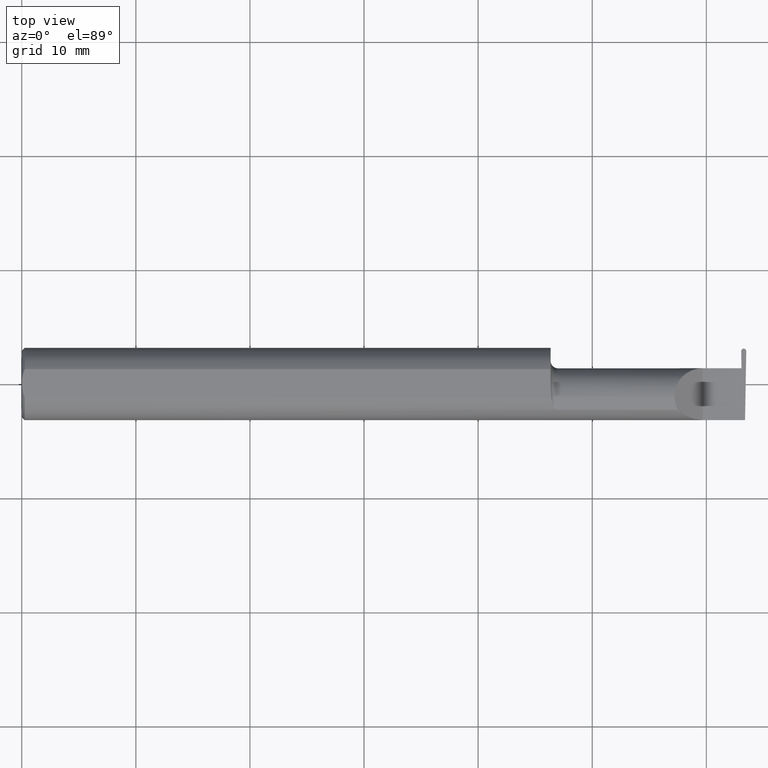
[diagram: clean part render]
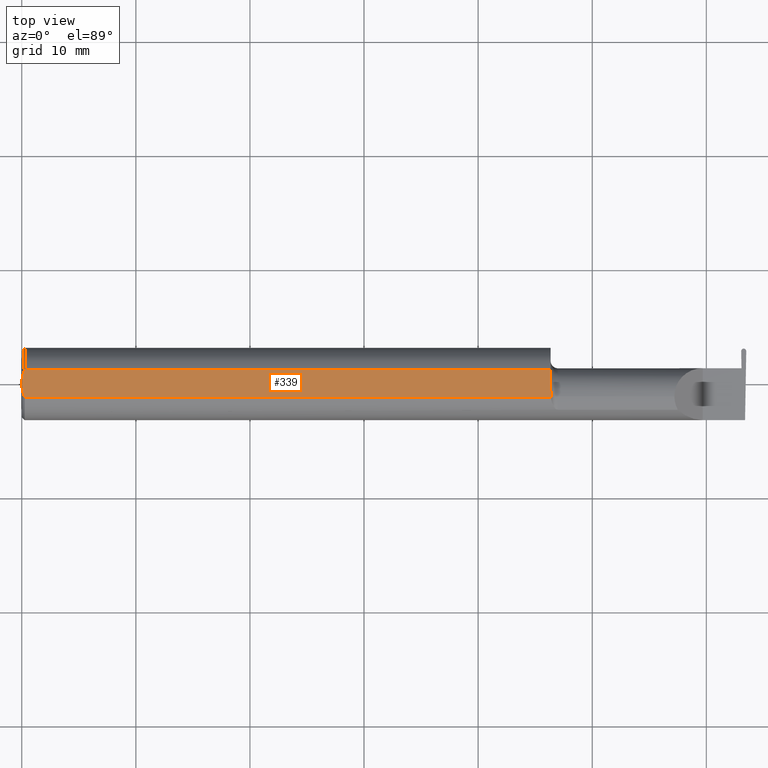
[diagram: same view with one face highlighted and labeled with its STEP entity id]
A machine part, top view. The second image highlights one B-rep face of the part: STEP entity #339.
In plain terms, the highlighted planar face has unit normal (0, 0, 1).
Its self-contained STEP definition (entity closure, byte-faithful):
#21 = CARTESIAN_POINT ( 'NONE',  ( 1.824999999999999956, -0.0003651515414569644164, 0.1149999999999999217 ) ) ;
#24 = VECTOR ( 'NONE', #164, 39.37007874015748143 ) ;
#58 = CARTESIAN_POINT ( 'NONE',  ( 0.000000000000000000, 3.414809992080329023E-17, 0.1149999999999999217 ) ) ;
#106 = CARTESIAN_POINT ( 'NONE',  ( 1.826311508822838103, -0.04566321385530211496, 0.1149999999999999217 ) ) ;
#130 = B_SPLINE_CURVE_WITH_KNOTS ( 'NONE', 3,
 ( #58, #315, #491, #183 ),
 .UNSPECIFIED., .F., .F.,
 ( 4, 4 ),
 ( 0.002331518380383306322, 0.003601362264757408584 ),
 .UNSPECIFIED. ) ;
#151 = ORIENTED_EDGE ( 'NONE', *, *, #438, .F. ) ;
#156 = CARTESIAN_POINT ( 'NONE',  ( 1.541666659510484467E-16, -0.008419750986449443114, 0.1149999999999999356 ) ) ;
#160 = VERTEX_POINT ( 'NONE', #362 ) ;
#164 = DIRECTION ( 'NONE',  ( 1.000000000000000000, 0.000000000000000000, 0.000000000000000000 ) ) ;
#175 = CARTESIAN_POINT ( 'NONE',  ( 1.826299368641400855, -0.04732662288241863691, 0.1149999999999999356 ) ) ;
#179 = DIRECTION ( 'NONE',  ( 0.000000000000000000, 1.000000000000000000, 0.000000000000000000 ) ) ;
#180 = EDGE_CURVE ( 'NONE', #806, #627, #604, .T. ) ;
#183 = CARTESIAN_POINT ( 'NONE',  ( 0.01000000000000042348, 0.04898979485566374442, 0.1149999999999999217 ) ) ;
#194 = CARTESIAN_POINT ( 'NONE',  ( 1.824999999999999956, -0.0003651515414569644164, 0.1149999999999999217 ) ) ;
#216 = DIRECTION ( 'NONE',  ( 1.000000000000000000, 0.000000000000000000, -0.000000000000000000 ) ) ;
#238 = CARTESIAN_POINT ( 'NONE',  ( 0.01000000000000042348, -0.04898979485566374442, 0.1149999999999999217 ) ) ;
#243 = ORIENTED_EDGE ( 'NONE', *, *, #577, .T. ) ;
#247 = EDGE_CURVE ( 'NONE', #668, #806, #736, .T. ) ;
#256 = CARTESIAN_POINT ( 'NONE',  ( 1.825386034718894157, -0.01491156948752239697, 0.1149999999999999217 ) ) ;
#274 = AXIS2_PLACEMENT_3D ( 'NONE', #582, #709, #216 ) ;
#289 = EDGE_CURVE ( 'NONE', #649, #720, #426, .T. ) ;
#315 = CARTESIAN_POINT ( 'NONE',  ( 1.642610067308552155E-16, 0.01684316307400865464, 0.1149999999999999217 ) ) ;
#339 = ADVANCED_FACE ( 'NONE', ( #700 ), #452, .T. ) ;
#355 = CARTESIAN_POINT ( 'NONE',  ( 0.000000000000000000, 3.414809992080329023E-17, 0.1149999999999999217 ) ) ;
#356 = ORIENTED_EDGE ( 'NONE', *, *, #247, .T. ) ;
#362 = CARTESIAN_POINT ( 'NONE',  ( 0.000000000000000000, 3.414809992080329023E-17, 0.1149999999999999217 ) ) ;
#371 = ORIENTED_EDGE ( 'NONE', *, *, #685, .F. ) ;
#372 = CARTESIAN_POINT ( 'NONE',  ( 1.826314561435346207, -0.04400000000000009459, 0.1149999999999999217 ) ) ;
#426 = LINE ( 'NONE', #791, #797 ) ;
#428 = CARTESIAN_POINT ( 'NONE',  ( 1.824999999999999956, 0.1250000000000000278, 0.1149999999999999217 ) ) ;
#438 = EDGE_CURVE ( 'NONE', #668, #160, #525, .T. ) ;
#447 = CARTESIAN_POINT ( 'NONE',  ( 1.824999999999999734, -0.007643795319155052316, 0.1149999999999999356 ) ) ;
#452 = PLANE ( 'NONE',  #274 ) ;
#460 = CARTESIAN_POINT ( 'NONE',  ( 1.826314561435346207, -0.04400000000000009459, 0.1149999999999999217 ) ) ;
#474 = CARTESIAN_POINT ( 'NONE',  ( 0.01000000000000042348, -0.04898979485566374442, 0.1149999999999999217 ) ) ;
#490 = CARTESIAN_POINT ( 'NONE',  ( 1.826290282237992502, -0.04815824739941139410, 0.1149999999999999356 ) ) ;
#491 = CARTESIAN_POINT ( 'NONE',  ( 0.003880275146595849479, 0.03337499979622342988, 0.1149999999999999217 ) ) ;
#525 = B_SPLINE_CURVE_WITH_KNOTS ( 'NONE', 3,
 ( #474, #666, #659, #608, #156, #355 ),
 .UNSPECIFIED., .F., .F.,
 ( 4, 2, 4 ),
 ( 0.001061950514642623312, 0.001696734447512964709, 0.002331518380383306322 ),
 .UNSPECIFIED. ) ;
#564 = ORIENTED_EDGE ( 'NONE', *, *, #180, .T. ) ;
#569 = ORIENTED_EDGE ( 'NONE', *, *, #289, .T. ) ;
#571 = B_SPLINE_CURVE_WITH_KNOTS ( 'NONE', 3,
 ( #460, #635, #586, #256, #447, #21 ),
 .UNSPECIFIED., .F., .F.,
 ( 4, 2, 4 ),
 ( 0.009445492519198586678, 0.009997058688341185773, 0.01054862485748378487 ),
 .UNSPECIFIED. ) ;
#577 = EDGE_CURVE ( 'NONE', #739, #649, #789, .T. ) ;
#579 = CARTESIAN_POINT ( 'NONE',  ( 1.826278290187167919, -0.04898979485482684443, 0.1149999999999999217 ) ) ;
#582 = CARTESIAN_POINT ( 'NONE',  ( 2.753179778023443269, 0.1250000000000000278, 0.1149999999999999217 ) ) ;
#586 = CARTESIAN_POINT ( 'NONE',  ( 1.826049928736321659, -0.02945016372790504669, 0.1149999999999999356 ) ) ;
#604 = B_SPLINE_CURVE_WITH_KNOTS ( 'NONE', 3,
 ( #618, #490, #175, #106, #663, #372 ),
 .UNSPECIFIED., .F., .F.,
 ( 4, 2, 4 ),
 ( 0.009319464280412446261, 0.009382478399805516470, 0.009445492519198586678 ),
 .UNSPECIFIED. ) ;
#608 = CARTESIAN_POINT ( 'NONE',  ( 0.0009328476361608245343, -0.01672844127736827086, 0.1149999999999999217 ) ) ;
#617 = EDGE_LOOP ( 'NONE', ( #356, #564, #731, #243, #569, #371, #151 ) ) ;
#618 = CARTESIAN_POINT ( 'NONE',  ( 1.826278290187167919, -0.04898979485482684443, 0.1149999999999999217 ) ) ;
#627 = VERTEX_POINT ( 'NONE', #749 ) ;
#635 = CARTESIAN_POINT ( 'NONE',  ( 1.826314561435346207, -0.03672135622230204843, 0.1149999999999999356 ) ) ;
#640 = VECTOR ( 'NONE', #179, 39.37007874015748143 ) ;
#642 = CARTESIAN_POINT ( 'NONE',  ( 0.01000000000000042348, 0.04898979485566374442, 0.1149999999999999217 ) ) ;
#649 = VERTEX_POINT ( 'NONE', #745 ) ;
#659 = CARTESIAN_POINT ( 'NONE',  ( 0.004414142251465132810, -0.03315347577847933824, 0.1149999999999999356 ) ) ;
#663 = CARTESIAN_POINT ( 'NONE',  ( 1.826314561435346429, -0.04483155449642704099, 0.1149999999999999356 ) ) ;
#666 = CARTESIAN_POINT ( 'NONE',  ( 0.006956794985978487743, -0.04122489957750442163, 0.1149999999999999356 ) ) ;
#668 = VERTEX_POINT ( 'NONE', #238 ) ;
#685 = EDGE_CURVE ( 'NONE', #160, #720, #130, .T. ) ;
#700 = FACE_OUTER_BOUND ( 'NONE', #617, .T. ) ;
#709 = DIRECTION ( 'NONE',  ( 0.000000000000000000, 0.000000000000000000, 1.000000000000000000 ) ) ;
#720 = VERTEX_POINT ( 'NONE', #642 ) ;
#723 = CARTESIAN_POINT ( 'NONE',  ( 0.000000000000000000, -0.04898979485566374442, 0.1149999999999999217 ) ) ;
#731 = ORIENTED_EDGE ( 'NONE', *, *, #794, .T. ) ;
#733 = DIRECTION ( 'NONE',  ( -1.000000000000000000, -0.000000000000000000, -0.000000000000000000 ) ) ;
#736 = LINE ( 'NONE', #723, #24 ) ;
#739 = VERTEX_POINT ( 'NONE', #194 ) ;
#745 = CARTESIAN_POINT ( 'NONE',  ( 1.824999999999999956, 0.04898979485566374442, 0.1149999999999999217 ) ) ;
#749 = CARTESIAN_POINT ( 'NONE',  ( 1.826314561435346207, -0.04400000000000009459, 0.1149999999999999217 ) ) ;
#789 = LINE ( 'NONE', #428, #640 ) ;
#791 = CARTESIAN_POINT ( 'NONE',  ( 0.000000000000000000, 0.04898979485566374442, 0.1149999999999999217 ) ) ;
#794 = EDGE_CURVE ( 'NONE', #627, #739, #571, .T. ) ;
#797 = VECTOR ( 'NONE', #733, 39.37007874015748143 ) ;
#806 = VERTEX_POINT ( 'NONE', #579 ) ;